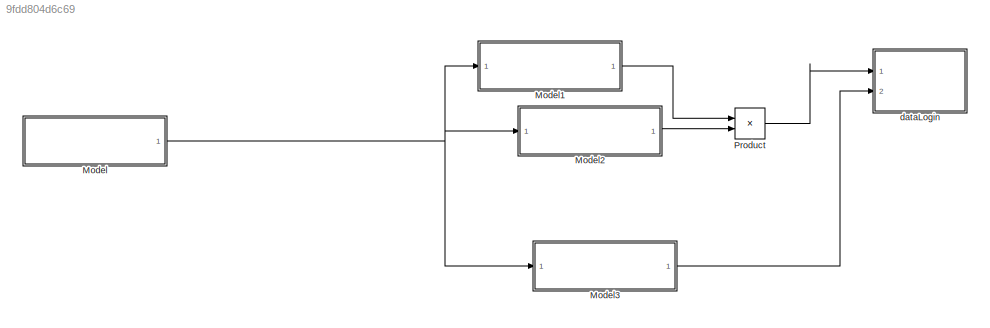
MODEL slx_9fdd804d6c69
KIND model
CONFIG AbsTol = auto
CONFIG EnableMultiTasking = off
CONFIG FixedStep = auto
CONFIG MaxStep = auto
CONFIG MinStep = auto
CONFIG RelTol = 1e-3
CONFIG SampleTimeConstraint = Unconstrained
CONFIG SolverName = VariableStepAuto
CONFIG StartTime = 0.0
CONFIG StopTime = 10.0
BLOCK [ModelReference] Model
  ModelNameDialog = function1
  ModelReferenceVersion = 1.4
  Ports = [0, 1]
BLOCK [ModelReference] Model1
  ModelNameDialog = function2
  ModelReferenceVersion = 1.3
  Ports = [1, 1]
BLOCK [ModelReference] Model2
  ModelNameDialog = testChris
  ModelReferenceVersion = 1.1
  Ports = [1, 1]
BLOCK [ModelReference] Model3
  ModelNameDialog = function3
  ModelReferenceVersion = 1.2
  Ports = [1, 1]
BLOCK [Product] Product
  Ports = [2, 1]
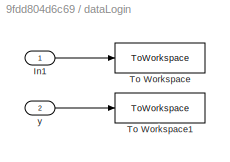
BLOCK [SubSystem] dataLogin
  Ports = [2]
  RequestExecContextInheritance = off
BLOCK [Inport] dataLogin/In1
BLOCK [ToWorkspace] dataLogin/To Workspace
  FixptAsFi = on
  MaxDataPoints = inf
  Ports = [1]
  SampleTime = -1
  SaveFormat = Timeseries
  VariableName = randomNumber
BLOCK [ToWorkspace] dataLogin/To Workspace1
  FixptAsFi = on
  MaxDataPoints = inf
  Ports = [1]
  SampleTime = -1
  SaveFormat = Timeseries
  VariableName = randomNumber1
BLOCK [Inport] dataLogin/y
  Port = 2
LINE Model1:1 -> Product:1
LINE Model2:1 -> Product:2
LINE Model3:1 -> dataLogin:2
NET Model:1 -> Model1:1, Model2:1, Model3:1
LINE Product:1 -> dataLogin:1
LINE dataLogin/In1:1 -> dataLogin/To Workspace:1
LINE dataLogin/y:1 -> dataLogin/To Workspace1:1
note: NET lines group one-source signal fan-out (src -> all destinations, sorted); 1:1 wires keep LINE
